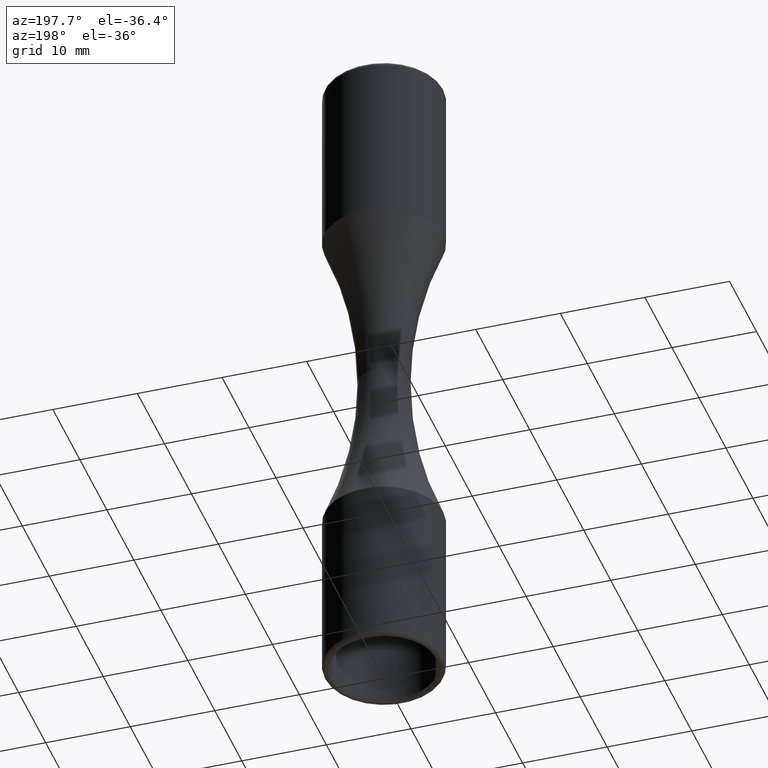
[diagram: clean part render]
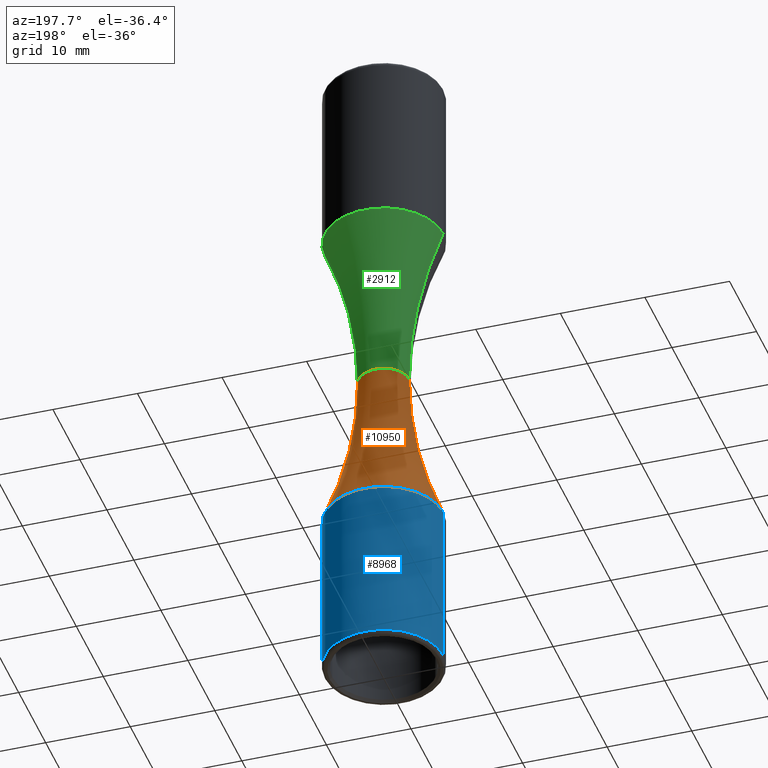
[diagram: same view with three faces highlighted in distinct colors, each labeled with its STEP entity id]
A machine part, auxiliary view with three faces highlighted in distinct colors.
Their STEP definitions:

[orange] entity #10950 — the highlighted toroidal blend (fillet) surface has major radius 52.5 mm and minor (blend) radius 49.5 mm.
#131 = CARTESIAN_POINT ( 'NONE',  ( -6.999999999999995559, -3.469446951953614189E-15, -19.49358868961791558 ) ) ;
#407 = CARTESIAN_POINT ( 'NONE',  ( 0.000000000000000000, 0.000000000000000000, 0.000000000000000000 ) ) ;
#1620 = ORIENTED_EDGE ( 'NONE', *, *, #6341, .F. ) ;
#1681 = DIRECTION ( 'NONE',  ( -1.000000000000000000, 0.000000000000000000, 0.000000000000000000 ) ) ;
#1915 = DIRECTION ( 'NONE',  ( 0.000000000000000000, -1.000000000000000000, 0.000000000000000000 ) ) ;
#1944 = VERTEX_POINT ( 'NONE', #10287 ) ;
#2228 = CARTESIAN_POINT ( 'NONE',  ( 52.50000000000000711, 6.429395695523604744E-15, 0.000000000000000000 ) ) ;
#2480 = DIRECTION ( 'NONE',  ( -0.000000000000000000, -0.000000000000000000, -1.000000000000000000 ) ) ;
#2540 = AXIS2_PLACEMENT_3D ( 'NONE', #2715, #1915, #8062 ) ;
#2651 = EDGE_CURVE ( 'NONE', #1944, #2746, #9280, .T. ) ;
#2715 = CARTESIAN_POINT ( 'NONE',  ( -52.50000000000000711, 0.000000000000000000, 0.000000000000000000 ) ) ;
#2746 = VERTEX_POINT ( 'NONE', #5441 ) ;
#3198 = EDGE_CURVE ( 'NONE', #10879, #1944, #3639, .T. ) ;
#3371 = EDGE_LOOP ( 'NONE', ( #10102, #11201, #11162, #1620 ) ) ;
#3639 = CIRCLE ( 'NONE', #2540, 49.50000000000000000 ) ;
#3918 = DIRECTION ( 'NONE',  ( -1.000000000000000000, 0.000000000000000000, 0.000000000000000000 ) ) ;
#4247 = TOROIDAL_SURFACE ( 'NONE', #5263, 52.50000000000000711, 49.50000000000000000 ) ;
#4250 = CARTESIAN_POINT ( 'NONE',  ( 0.000000000000000000, -3.469446951953614189E-15, -19.49358868961791558 ) ) ;
#4553 = CIRCLE ( 'NONE', #9558, 6.999999999999995559 ) ;
#4794 = DIRECTION ( 'NONE',  ( -1.000000000000000000, -1.224646799147353207E-16, 0.000000000000000000 ) ) ;
#5156 = CARTESIAN_POINT ( 'NONE',  ( 6.999999999999995559, -2.612194192550467363E-15, -19.49358868961791558 ) ) ;
#5263 = AXIS2_PLACEMENT_3D ( 'NONE', #407, #9180, #3918 ) ;
#5441 = CARTESIAN_POINT ( 'NONE',  ( 3.000000000000002665, 3.673940397442066771E-16, 6.062001655779398511E-15 ) ) ;
#6341 = EDGE_CURVE ( 'NONE', #10879, #7709, #4553, .T. ) ;
#6582 = AXIS2_PLACEMENT_3D ( 'NONE', #2228, #9189, #4794 ) ;
#7586 = CIRCLE ( 'NONE', #6582, 49.50000000000000000 ) ;
#7709 = VERTEX_POINT ( 'NONE', #5156 ) ;
#7998 = AXIS2_PLACEMENT_3D ( 'NONE', #11358, #10450, #10413 ) ;
#8062 = DIRECTION ( 'NONE',  ( 0.000000000000000000, 0.000000000000000000, -1.000000000000000000 ) ) ;
#8415 = EDGE_CURVE ( 'NONE', #7709, #2746, #7586, .T. ) ;
#9180 = DIRECTION ( 'NONE',  ( -0.000000000000000000, -0.000000000000000000, -1.000000000000000000 ) ) ;
#9189 = DIRECTION ( 'NONE',  ( -1.224646799147353207E-16, 1.000000000000000000, 0.000000000000000000 ) ) ;
#9280 = CIRCLE ( 'NONE', #7998, 3.000000000000002665 ) ;
#9558 = AXIS2_PLACEMENT_3D ( 'NONE', #4250, #2480, #1681 ) ;
#10102 = ORIENTED_EDGE ( 'NONE', *, *, #3198, .T. ) ;
#10287 = CARTESIAN_POINT ( 'NONE',  ( -3.000000000000002665, 0.000000000000000000, 6.062001655779398511E-15 ) ) ;
#10413 = DIRECTION ( 'NONE',  ( -1.000000000000000000, 0.000000000000000000, 0.000000000000000000 ) ) ;
#10450 = DIRECTION ( 'NONE',  ( -0.000000000000000000, -0.000000000000000000, -1.000000000000000000 ) ) ;
#10711 = FACE_OUTER_BOUND ( 'NONE', #3371, .T. ) ;
#10879 = VERTEX_POINT ( 'NONE', #131 ) ;
#10950 = ADVANCED_FACE ( 'NONE', ( #10711 ), #4247, .F. ) ;
#11162 = ORIENTED_EDGE ( 'NONE', *, *, #8415, .F. ) ;
#11201 = ORIENTED_EDGE ( 'NONE', *, *, #2651, .T. ) ;
#11358 = CARTESIAN_POINT ( 'NONE',  ( 0.000000000000000000, 0.000000000000000000, 6.062001655779398511E-15 ) ) ;

[blue] entity #8968 — the highlighted cylindrical surface (partial cylindrical patch) has radius 7 mm, axis along (-0, -0, -1).
#131 = CARTESIAN_POINT ( 'NONE',  ( -6.999999999999995559, -3.469446951953614189E-15, -19.49358868961791558 ) ) ;
#463 = AXIS2_PLACEMENT_3D ( 'NONE', #7903, #5237, #6856 ) ;
#505 = LINE ( 'NONE', #1374, #879 ) ;
#879 = VECTOR ( 'NONE', #1413, 1000.000000000000000 ) ;
#1374 = CARTESIAN_POINT ( 'NONE',  ( -7.000000000000000000, -3.469446951953614189E-15, -16.82833891354982114 ) ) ;
#1413 = DIRECTION ( 'NONE',  ( -0.000000000000000000, -0.000000000000000000, -1.000000000000000000 ) ) ;
#1526 = ORIENTED_EDGE ( 'NONE', *, *, #4931, .T. ) ;
#1681 = DIRECTION ( 'NONE',  ( -1.000000000000000000, 0.000000000000000000, 0.000000000000000000 ) ) ;
#2480 = DIRECTION ( 'NONE',  ( -0.000000000000000000, -0.000000000000000000, -1.000000000000000000 ) ) ;
#2790 = VECTOR ( 'NONE', #8818, 1000.000000000000000 ) ;
#2894 = AXIS2_PLACEMENT_3D ( 'NONE', #10934, #10292, #3196 ) ;
#3196 = DIRECTION ( 'NONE',  ( -1.000000000000000000, 0.000000000000000000, 0.000000000000000000 ) ) ;
#3355 = CIRCLE ( 'NONE', #463, 7.000000000000000000 ) ;
#4250 = CARTESIAN_POINT ( 'NONE',  ( 0.000000000000000000, -3.469446951953614189E-15, -19.49358868961791558 ) ) ;
#4505 = ORIENTED_EDGE ( 'NONE', *, *, #5386, .T. ) ;
#4553 = CIRCLE ( 'NONE', #9558, 6.999999999999995559 ) ;
#4931 = EDGE_CURVE ( 'NONE', #9876, #9155, #3355, .T. ) ;
#5156 = CARTESIAN_POINT ( 'NONE',  ( 6.999999999999995559, -2.612194192550467363E-15, -19.49358868961791558 ) ) ;
#5213 = EDGE_CURVE ( 'NONE', #10879, #9155, #505, .T. ) ;
#5237 = DIRECTION ( 'NONE',  ( 0.000000000000000000, 0.000000000000000000, 1.000000000000000000 ) ) ;
#5379 = ORIENTED_EDGE ( 'NONE', *, *, #5213, .F. ) ;
#5386 = EDGE_CURVE ( 'NONE', #7709, #9876, #6073, .T. ) ;
#6073 = LINE ( 'NONE', #7054, #2790 ) ;
#6341 = EDGE_CURVE ( 'NONE', #10879, #7709, #4553, .T. ) ;
#6521 = CYLINDRICAL_SURFACE ( 'NONE', #2894, 7.000000000000000000 ) ;
#6801 = EDGE_LOOP ( 'NONE', ( #9085, #4505, #1526, #5379 ) ) ;
#6856 = DIRECTION ( 'NONE',  ( -1.000000000000000000, 0.000000000000000000, 0.000000000000000000 ) ) ;
#6985 = CARTESIAN_POINT ( 'NONE',  ( -7.000000000000000000, -3.469446951953614189E-15, -39.49358868961792268 ) ) ;
#7054 = CARTESIAN_POINT ( 'NONE',  ( 7.000000000000000000, -2.612194192550466968E-15, -16.82833891354982114 ) ) ;
#7498 = FACE_OUTER_BOUND ( 'NONE', #6801, .T. ) ;
#7709 = VERTEX_POINT ( 'NONE', #5156 ) ;
#7903 = CARTESIAN_POINT ( 'NONE',  ( 0.000000000000000000, -3.469446951953614189E-15, -39.49358868961792268 ) ) ;
#8818 = DIRECTION ( 'NONE',  ( -0.000000000000000000, -0.000000000000000000, -1.000000000000000000 ) ) ;
#8873 = CARTESIAN_POINT ( 'NONE',  ( 7.000000000000000000, -2.612194192550466968E-15, -39.49358868961792268 ) ) ;
#8968 = ADVANCED_FACE ( 'NONE', ( #7498 ), #6521, .T. ) ;
#9085 = ORIENTED_EDGE ( 'NONE', *, *, #6341, .T. ) ;
#9155 = VERTEX_POINT ( 'NONE', #6985 ) ;
#9558 = AXIS2_PLACEMENT_3D ( 'NONE', #4250, #2480, #1681 ) ;
#9876 = VERTEX_POINT ( 'NONE', #8873 ) ;
#10292 = DIRECTION ( 'NONE',  ( -0.000000000000000000, -0.000000000000000000, -1.000000000000000000 ) ) ;
#10879 = VERTEX_POINT ( 'NONE', #131 ) ;
#10934 = CARTESIAN_POINT ( 'NONE',  ( 0.000000000000000000, -3.469446951953614189E-15, -16.82833891354982114 ) ) ;

[green] entity #2912 — the highlighted toroidal blend (fillet) surface has major radius 52.5 mm and minor (blend) radius 49.5 mm.
#126 = VERTEX_POINT ( 'NONE', #2508 ) ;
#167 = DIRECTION ( 'NONE',  ( 0.000000000000000000, -1.000000000000000000, 0.000000000000000000 ) ) ;
#201 = AXIS2_PLACEMENT_3D ( 'NONE', #10696, #7199, #10736 ) ;
#240 = ORIENTED_EDGE ( 'NONE', *, *, #9224, .T. ) ;
#436 = EDGE_CURVE ( 'NONE', #2746, #126, #2178, .T. ) ;
#954 = CARTESIAN_POINT ( 'NONE',  ( -7.000000000000000888, 0.000000000000000000, 19.49358868961792268 ) ) ;
#1300 = DIRECTION ( 'NONE',  ( -1.000000000000000000, 0.000000000000000000, 0.000000000000000000 ) ) ;
#1370 = CARTESIAN_POINT ( 'NONE',  ( 0.000000000000000000, -3.469446951953614189E-15, 19.49358868961792268 ) ) ;
#1530 = AXIS2_PLACEMENT_3D ( 'NONE', #10932, #9264, #10896 ) ;
#1944 = VERTEX_POINT ( 'NONE', #10287 ) ;
#2178 = CIRCLE ( 'NONE', #201, 49.50000000000000000 ) ;
#2401 = CIRCLE ( 'NONE', #5615, 49.50000000000000000 ) ;
#2508 = CARTESIAN_POINT ( 'NONE',  ( 7.000000000000000888, 8.572527594031469245E-16, 19.49358868961792268 ) ) ;
#2651 = EDGE_CURVE ( 'NONE', #1944, #2746, #9280, .T. ) ;
#2746 = VERTEX_POINT ( 'NONE', #5441 ) ;
#2912 = ADVANCED_FACE ( 'NONE', ( #9547 ), #10947, .F. ) ;
#3378 = ORIENTED_EDGE ( 'NONE', *, *, #5669, .T. ) ;
#4441 = DIRECTION ( 'NONE',  ( 0.000000000000000000, 0.000000000000000000, -1.000000000000000000 ) ) ;
#4619 = ORIENTED_EDGE ( 'NONE', *, *, #436, .F. ) ;
#5118 = CIRCLE ( 'NONE', #11049, 7.000000000000002665 ) ;
#5441 = CARTESIAN_POINT ( 'NONE',  ( 3.000000000000002665, 3.673940397442066771E-16, 6.062001655779398511E-15 ) ) ;
#5615 = AXIS2_PLACEMENT_3D ( 'NONE', #8863, #167, #4441 ) ;
#5669 = EDGE_CURVE ( 'NONE', #7358, #126, #5118, .T. ) ;
#7199 = DIRECTION ( 'NONE',  ( -1.224646799147353207E-16, 1.000000000000000000, 0.000000000000000000 ) ) ;
#7358 = VERTEX_POINT ( 'NONE', #954 ) ;
#7532 = EDGE_LOOP ( 'NONE', ( #9090, #240, #3378, #4619 ) ) ;
#7998 = AXIS2_PLACEMENT_3D ( 'NONE', #11358, #10450, #10413 ) ;
#8863 = CARTESIAN_POINT ( 'NONE',  ( -52.50000000000000711, 0.000000000000000000, 0.000000000000000000 ) ) ;
#9090 = ORIENTED_EDGE ( 'NONE', *, *, #2651, .F. ) ;
#9224 = EDGE_CURVE ( 'NONE', #1944, #7358, #2401, .T. ) ;
#9264 = DIRECTION ( 'NONE',  ( -0.000000000000000000, -0.000000000000000000, -1.000000000000000000 ) ) ;
#9280 = CIRCLE ( 'NONE', #7998, 3.000000000000002665 ) ;
#9547 = FACE_OUTER_BOUND ( 'NONE', #7532, .T. ) ;
#10287 = CARTESIAN_POINT ( 'NONE',  ( -3.000000000000002665, 0.000000000000000000, 6.062001655779398511E-15 ) ) ;
#10413 = DIRECTION ( 'NONE',  ( -1.000000000000000000, 0.000000000000000000, 0.000000000000000000 ) ) ;
#10450 = DIRECTION ( 'NONE',  ( -0.000000000000000000, -0.000000000000000000, -1.000000000000000000 ) ) ;
#10696 = CARTESIAN_POINT ( 'NONE',  ( 52.50000000000000711, 6.429395695523604744E-15, 0.000000000000000000 ) ) ;
#10736 = DIRECTION ( 'NONE',  ( -1.000000000000000000, -1.224646799147353207E-16, 0.000000000000000000 ) ) ;
#10896 = DIRECTION ( 'NONE',  ( -1.000000000000000000, 0.000000000000000000, 0.000000000000000000 ) ) ;
#10932 = CARTESIAN_POINT ( 'NONE',  ( 0.000000000000000000, 0.000000000000000000, 0.000000000000000000 ) ) ;
#10947 = TOROIDAL_SURFACE ( 'NONE', #1530, 52.50000000000000711, 49.50000000000000000 ) ;
#11049 = AXIS2_PLACEMENT_3D ( 'NONE', #1370, #11067, #1300 ) ;
#11067 = DIRECTION ( 'NONE',  ( -0.000000000000000000, -0.000000000000000000, -1.000000000000000000 ) ) ;
#11358 = CARTESIAN_POINT ( 'NONE',  ( 0.000000000000000000, 0.000000000000000000, 6.062001655779398511E-15 ) ) ;